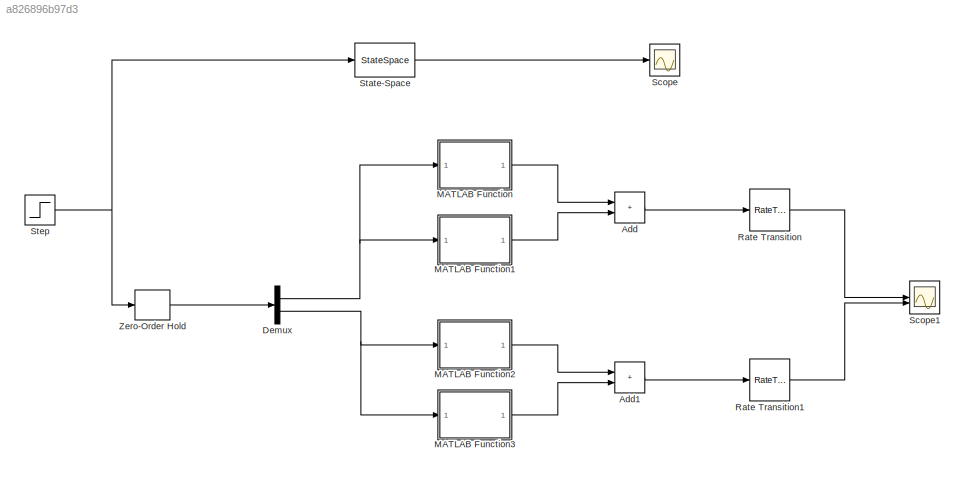
MODEL slx_a826896b97d3
KIND model
CONFIG AbsTol = auto
CONFIG EnableMultiTasking = off
CONFIG FixedStep = auto
CONFIG MaxStep = auto
CONFIG MinStep = auto
CONFIG RelTol = 1e-3
CONFIG SampleTimeConstraint = Unconstrained
CONFIG SolverName = VariableStepAuto
CONFIG StartTime = 0.0
CONFIG StopTime = 0.3
BLOCK [Sum] Add
  IconShape = rectangular
BLOCK [Sum] Add1
  IconShape = rectangular
BLOCK [Demux] Demux
  Outputs = 2
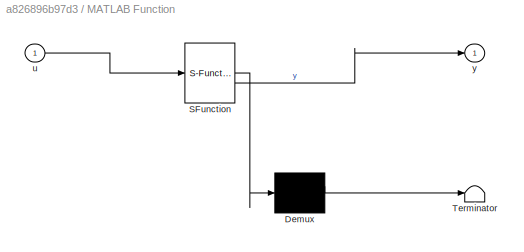
BLOCK [SubSystem] MATLAB Function
  ErrorFcn = Stateflow.Translate.translate
  PermitHierarchicalResolution = ExplicitOnly
  SFBlockType = MATLAB Function
  TreatAsAtomicUnit = on
BLOCK [Demux] MATLAB Function/ Demux 
  Outputs = 1
BLOCK [S-Function] MATLAB Function/ SFunction 
  EnableBusSupport = on
  FunctionName = sf_sfun
  PortCounts = [1 2]
  SFcnIsStateOwnerBlock = off
  SFunctionDeploymentMode = off
  Tag = Stateflow S-Function 2
BLOCK [Terminator] MATLAB Function/ Terminator 
BLOCK [Inport] MATLAB Function/u
BLOCK [Outport] MATLAB Function/y
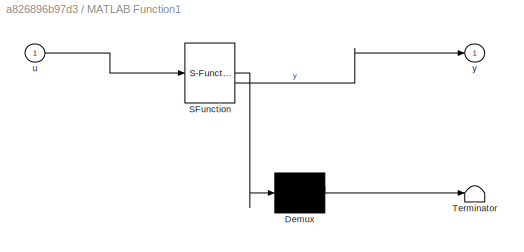
BLOCK [SubSystem] MATLAB Function1
  ErrorFcn = Stateflow.Translate.translate
  PermitHierarchicalResolution = ExplicitOnly
  SFBlockType = MATLAB Function
  TreatAsAtomicUnit = on
BLOCK [Demux] MATLAB Function1/ Demux 
  Outputs = 1
BLOCK [S-Function] MATLAB Function1/ SFunction 
  EnableBusSupport = on
  FunctionName = sf_sfun
  PortCounts = [1 2]
  SFcnIsStateOwnerBlock = off
  SFunctionDeploymentMode = off
  Tag = Stateflow S-Function 1
BLOCK [Terminator] MATLAB Function1/ Terminator 
BLOCK [Inport] MATLAB Function1/u
BLOCK [Outport] MATLAB Function1/y
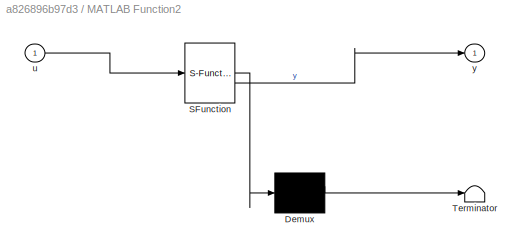
BLOCK [SubSystem] MATLAB Function2
  ErrorFcn = Stateflow.Translate.translate
  PermitHierarchicalResolution = ExplicitOnly
  SFBlockType = MATLAB Function
  TreatAsAtomicUnit = on
BLOCK [Demux] MATLAB Function2/ Demux 
  Outputs = 1
BLOCK [S-Function] MATLAB Function2/ SFunction 
  EnableBusSupport = on
  FunctionName = sf_sfun
  PortCounts = [1 2]
  SFcnIsStateOwnerBlock = off
  SFunctionDeploymentMode = off
  Tag = Stateflow S-Function 3
BLOCK [Terminator] MATLAB Function2/ Terminator 
BLOCK [Inport] MATLAB Function2/u
BLOCK [Outport] MATLAB Function2/y
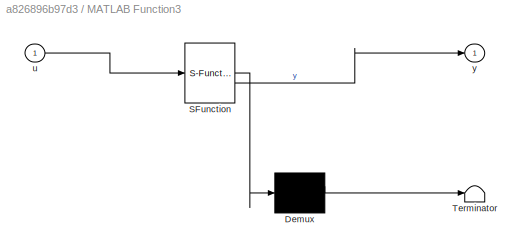
BLOCK [SubSystem] MATLAB Function3
  ErrorFcn = Stateflow.Translate.translate
  PermitHierarchicalResolution = ExplicitOnly
  SFBlockType = MATLAB Function
  TreatAsAtomicUnit = on
BLOCK [Demux] MATLAB Function3/ Demux 
  Outputs = 1
BLOCK [S-Function] MATLAB Function3/ SFunction 
  EnableBusSupport = on
  FunctionName = sf_sfun
  PortCounts = [1 2]
  SFcnIsStateOwnerBlock = off
  SFunctionDeploymentMode = off
  Tag = Stateflow S-Function 4
BLOCK [Terminator] MATLAB Function3/ Terminator 
BLOCK [Inport] MATLAB Function3/u
BLOCK [Outport] MATLAB Function3/y
BLOCK [RateTransition] Rate Transition
BLOCK [RateTransition] Rate Transition1
BLOCK [Scope] Scope
  Floating = off
  NumInputPorts = 1
  ScopeSpecificationString = Simulink.scopes.TimeScopeBlockCfg('CurrentConfiguration', extmgr.ConfigurationSet(extmgr.Configuration('Core','General UI',true),extmgr.Configuration('Core','Source UI',true),extmgr.Configuration('Sources','WiredSimulink',true),extmgr.Configuration('Visuals','Time Domain',true,'SerializedDisplays',{struct('MinYLimReal','-48.07692','MaxYLimReal','432.6923','YLabelReal','','MinYLimMag','0.00000','Ma...<+1444ch>
BLOCK [Scope] Scope1
  Floating = off
  NumInputPorts = 2
  ScopeSpecificationString = Simulink.scopes.TimeScopeBlockCfg('CurrentConfiguration', extmgr.ConfigurationSet(extmgr.Configuration('Core','General UI',true),extmgr.Configuration('Core','Source UI',true),extmgr.Configuration('Sources','WiredSimulink',true,'DataLoggingVariableName','ScopeData1'),extmgr.Configuration('Visuals','Time Domain',true,'SerializedDisplays',{struct('MinYLimReal','-39.75217','MaxYLimReal','357.76949','Y...<+1492ch>
BLOCK [StateSpace] State-Space
  A = A
  B = B
  C = C
  D = D
  InitialCondition = 0
BLOCK [Step] Step
  After = [25, 0]
  Before = [0, 0]
  SampleTime = Ts
  Time = 0
BLOCK [ZeroOrderHold] Zero-Order Hold
  SampleTime = -1
LINE Add1:1 -> Rate Transition1:1
LINE Add:1 -> Rate Transition:1
NET Demux:1 -> MATLAB Function1:1, MATLAB Function:1
NET Demux:2 -> MATLAB Function2:1, MATLAB Function3:1
LINE MATLAB Function1:1 -> Add:2
LINE MATLAB Function2:1 -> Add1:1
LINE MATLAB Function3:1 -> Add1:2
LINE MATLAB Function:1 -> Add:1
LINE Rate Transition1:1 -> Scope1:2
LINE Rate Transition:1 -> Scope1:1
LINE State-Space:1 -> Scope:1
NET Step:1 -> State-Space:1, Zero-Order Hold:1
LINE Zero-Order Hold:1 -> Demux:1
note: NET lines group one-source signal fan-out (src -> all destinations, sorted); 1:1 wires keep LINE
CHART MATLAB Function states=1 transitions=1
  STATE_LABEL 'eML_blk_kernel()'
  STATE_LABEL 'SCRIPT:\nfunction y = fcn(u)\n\npersistent y1 y2 u1 u2;\n\nif isempty(y2)\n    y2 = 0;\nend\n\nif isempty(y1)\n    y1 = 0;\nend\n\nif isempty(u1)\n    u1 = 0;\nend\n\nif isempty(u2)\n    u2 = 0;\nend\n\na = 0.346;\nb = -0.346;\nc = -1.41;\nd = 0.4421;\n\ny = - c * y1 - d * y2 + a * u1 + b * u2;\n\nu2 = u1;\nu1 = u;\ny2 = y1;\ny1 = y;'
CHART MATLAB Function2 states=1 transitions=1
  STATE_LABEL 'eML_blk_kernel()'
  STATE_LABEL 'SCRIPT:\nfunction y = fcn(u)\n\npersistent y1 y2 u1 u2;\n\nif isempty(y2)\n    y2 = 0;\nend\n\nif isempty(y1)\n    y1 = 0;\nend\n\nif isempty(u1)\n    u1 = 0;\nend\n\nif isempty(u2)\n    u2 = 0;\nend\n\na = 0.2791;\nb = 0.2128;\nc = -1.41;\nd = 0.4421;\n\ny = - c * y1 - d * y2 + a * u1 + b * u2;\n\nu2 = u1;\nu1 = u;\ny2 = y1;\ny1 = y;'
CHART MATLAB Function3 states=1 transitions=1
  STATE_LABEL 'eML_blk_kernel()'
  STATE_LABEL 'SCRIPT:\nfunction y = fcn(u)\n\npersistent y1 y2 u1 u2;\n\nif isempty(y2)\n    y2 = 0;\nend\n\nif isempty(y1)\n    y1 = 0;\nend\n\nif isempty(u1)\n    u1 = 0;\nend\n\nif isempty(u2)\n    u2 = 0;\nend\n\na = -21.65;\nb = 9.537;\nc = -1.41;\nd = 0.4421;\n\ny = -c * y1 - d * y2 + a * u1 + b * u2;\n\nu2 = u1;\nu1 = u;\ny2 = y1;\ny1 = y;'
CHART MATLAB Function1 states=1 transitions=1
  STATE_LABEL 'eML_blk_kernel()'
  STATE_LABEL 'SCRIPT:\nfunction y = fcn(u)\n\npersistent y1 y2 u1 u2;\n\nif isempty(y2)\n    y2 = 0;\nend\n\nif isempty(y1)\n    y1 = 0;\nend\n\nif isempty(u1)\n    u1 = 0;\nend\n\nif isempty(u2)\n    u2 = 0;\nend\n\na = 0.2791;\nb = 0.2128;\nc = -1.41;\nd = 0.4421;\n\ny = -c * y1 - d * y2 + a * u1 + b * u2;\n\nu2 = u1;\nu1 = u;\ny2 = y1;\ny1 = y;'
CHART  states=0 transitions=0
CHART  states=0 transitions=0
CHART  states=0 transitions=0
CHART  states=0 transitions=0
